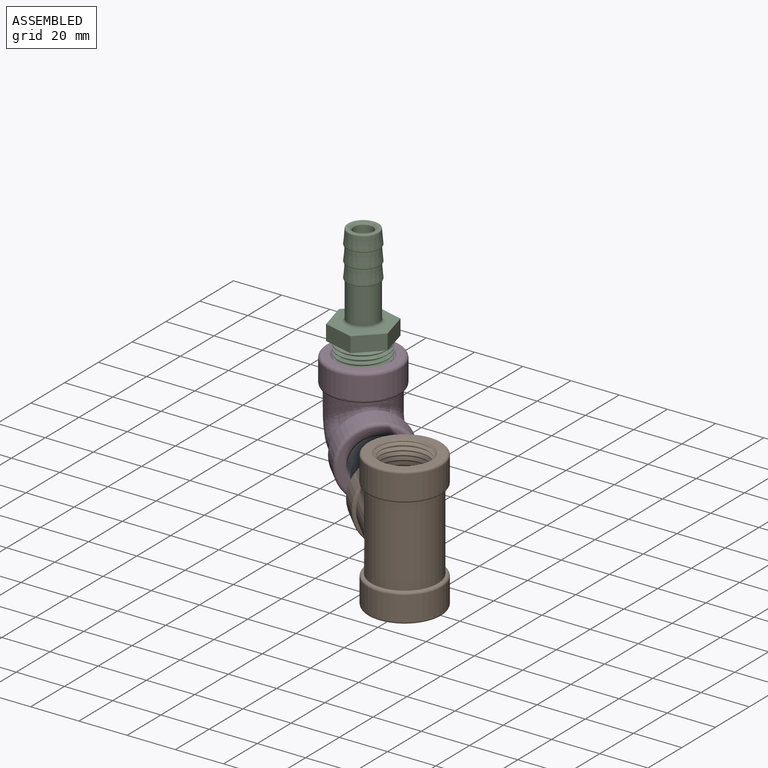
[diagram: assembled view]
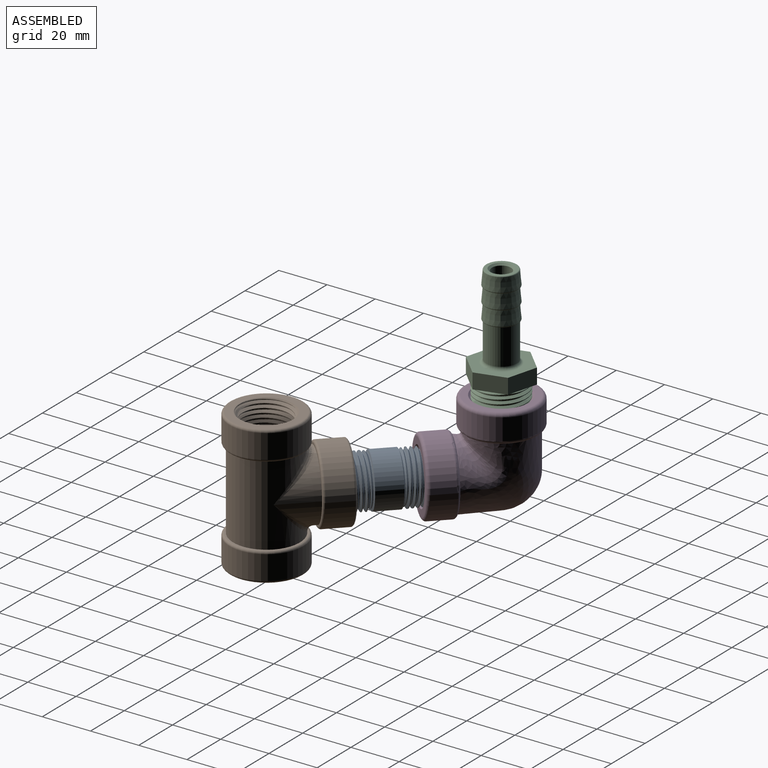
[diagram: assembled view, second angle]
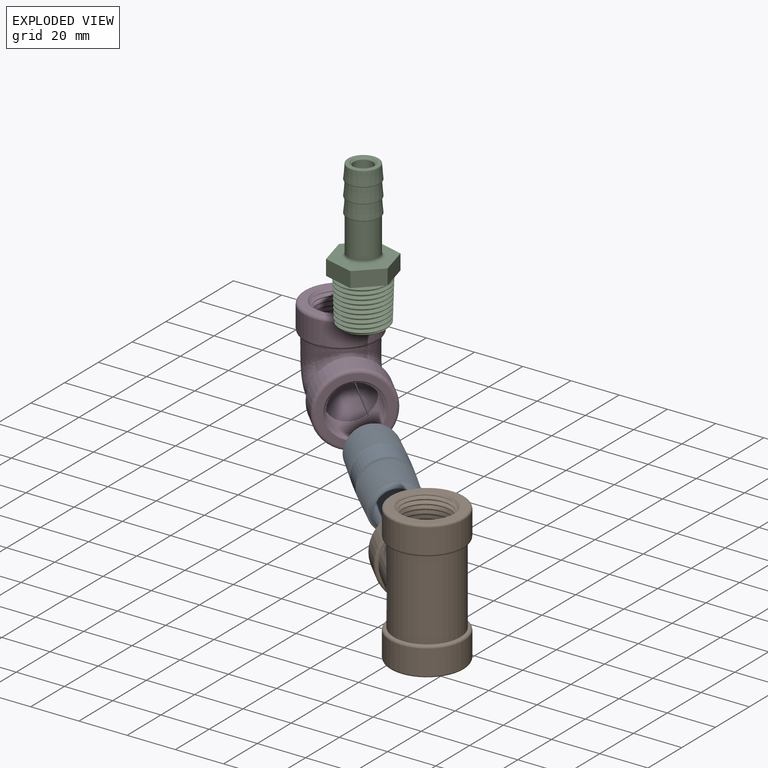
[diagram: exploded view]
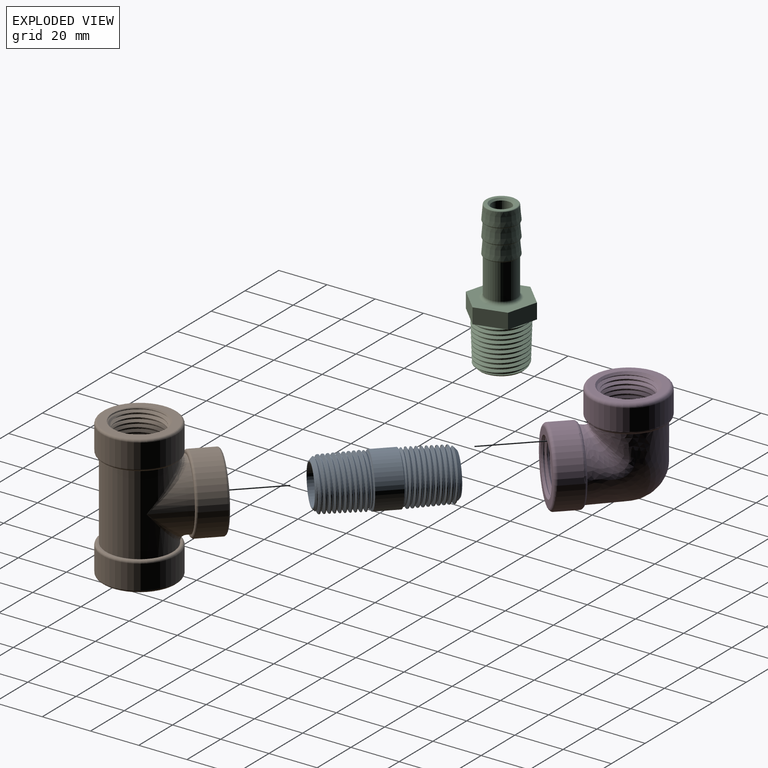
[diagram: exploded view, second angle]
ASSEMBLY  parts=4 mates=3
PART A: 26 faces, bbox 51x21.9x21.9 mm
  f0: cylinder r=7.9mm len=50.8mm, axis (1,0,0), area 2521.4mm2, adj f16,f23
  f1: cone r=10.67mm half-angle=70deg, axis (1,0,0), area 67.3mm2, adj f2,f6
  f2: cone r=9.6mm half-angle=30deg, axis (1,0,0), area 9.5mm2, adj f1,f3,f25
  f3: cone r=9.6mm half-angle=45deg, axis (-1,0,0), area 41.4mm2, adj f2,f5,f19,f20,f21,f22
  f4: cone r=8.28mm half-angle=46.5deg, axis (1,0,0), area 97.8mm2, adj f5,f19,f20,f21,f22,f23,f24
  f5: cone r=10.67mm half-angle=1.5deg, axis (1,0,0), area 196.6mm2, adj f3,f4,f19,f20
  f6: cylinder r=10.67mm len=21.34mm, axis (1,0,0), area 677.6mm2, adj f1,f7
  f7: cone r=10.67mm half-angle=70deg, axis (-1,0,0), area 67.3mm2, adj f6,f8
  f8: cone r=9.6mm half-angle=30deg, axis (-1,0,0), area 9.5mm2, adj f7,f9,f18
  f9: cone r=9.6mm half-angle=45deg, axis (1,0,0), area 41.4mm2, adj f8,f11,f12,f13,f14,f15
  f10: cone r=8.28mm half-angle=46.5deg, axis (-1,0,0), area 97.8mm2, adj f11,f12,f13,f14,f15,f16,f17
  f11: cone r=10.67mm half-angle=1.5deg, axis (-1,0,0), area 196.6mm2, adj f9,f10,f12,f13
  f12: bspline ~21.89x21.81mm, area 81.7mm2, adj f9,f10,f11,f14
  f13: bspline ~21.81x21.79mm, area 46mm2, adj f9,f10,f11,f15
  f14: bspline ~21.1x21mm, area 839.2mm2, adj f9,f10,f12,f17,f18
  f15: bspline ~21.15x20.96mm, area 839.3mm2, adj f9,f10,f13,f17,f18
  f16: plane 16.57x16.57mm, normal (1,0,0), area 19.6mm2, adj f0,f10
  f17: bspline ~19.7x18.66mm, area 139mm2, adj f10,f14,f15,f18
  f18: plane 10.96x4.79mm, normal (1,0,0), area 1.4mm2, adj f8,f14,f15,f17
  f19: bspline ~21.89x21.81mm, area 81.7mm2, adj f3,f4,f5,f21
  f20: bspline ~21.81x21.79mm, area 46mm2, adj f3,f4,f5,f22
  f21: bspline ~21.1x21mm, area 839.2mm2, adj f3,f4,f19,f24,f25
  f22: bspline ~21.15x20.96mm, area 839.3mm2, adj f3,f4,f20,f24,f25
  f23: plane 16.57x16.57mm, normal (-1,0,0), area 19.6mm2, adj f0,f4
  f24: bspline ~19.7x18.66mm, area 139mm2, adj f4,f21,f22,f25
  f25: plane 10.96x4.79mm, normal (-1,0,0), area 1.4mm2, adj f2,f21,f22,f24
PART B: 42 faces, bbox 58.7x33.3x45.7 mm
  f0: torus R=14.37mm, axis (1,0,0), area 148.1mm2, adj f1,f41
  f1: plane 28.73x28.73mm, normal (-1,0,0), area 260.7mm2, adj f0,f2
  f2: cone r=11.11mm half-angle=45deg, axis (-1,0,0), area 67.9mm2, adj f1,f3,f38,f39,f40
  f3: cone r=10.67mm half-angle=1.5deg, axis (-1,0,0), area 111.2mm2, adj f2,f4,f38,f40
  f4: cylinder r=10.67mm len=33.4mm, axis (-1,0,0), area 1691.8mm2, adj f3,f5,f34,f35,f36,f37,f40
  f5: cone r=10.67mm half-angle=1.5deg, axis (1,0,0), area 111.2mm2, adj f4,f6,f33,f35
  f6: cone r=11.11mm half-angle=45deg, axis (1,0,0), area 67.7mm2, adj f5,f7,f8,f33,f35
  f7: bspline ~19.76x19.68mm, area 86.9mm2, adj f6,f33,f34,f35
  f8: plane 28.73x28.73mm, normal (1,0,0), area 260.7mm2, adj f6,f9
  f9: torus R=14.37mm, axis (-1,0,0), area 148.1mm2, adj f8,f10
  f10: cylinder r=15.37mm len=30.73mm, axis (-1,0,0), area 965.7mm2, adj f9,f11
  f11: torus R=14.37mm, axis (-1,0,0), area 148.1mm2, adj f10,f12
  f12: plane 28.73x28.73mm, normal (-1,0,0), area 47.5mm2, adj f11,f13
  f13: cylinder r=13.83mm len=33.4mm, axis (-1,0,0), area 2002.8mm2, adj f12,f14,f29,f30,f31
  f14: bspline ~27.66x16.24mm, area 17.6mm2, adj f13,f15
  f15: cylinder r=13.83mm len=27.66mm, axis (0,0,1), area 553.4mm2, adj f14,f16,f29,f30
  f16: plane 28.73x28.73mm, normal (0,0,-1), area 47.5mm2, adj f15,f17
  f17: torus R=14.37mm, axis (0,0,1), area 148.1mm2, adj f16,f18
  f18: cylinder r=15.37mm len=30.73mm, axis (0,0,-1), area 965.7mm2, adj f17,f19
  f19: torus R=14.37mm, axis (0,0,1), area 148.1mm2, adj f18,f20
  f20: plane 28.73x28.73mm, normal (0,0,1), area 242.8mm2, adj f19,f21
  f21: cone r=11.36mm half-angle=45deg, axis (0,0,1), area 94.3mm2, adj f20,f22,f24,f25,f26,f27,f28
  f22: bspline ~19.33x19.29mm, area 78.6mm2, adj f21,f23,f24,f25,f28
  f23: plane 1.6x1.2mm, normal (0,-1,0), area 1.1mm2, adj f22,f25,f26,f27,f28,f36
  f24: cone r=11.36mm half-angle=45deg, axis (0,0,1), area 1.2mm2, adj f21,f22,f25
  f25: bspline ~22.1x22.06mm, area 507.7mm2, adj f21,f22,f23,f24,f26
  f26: bspline ~21.78x21.76mm, area 10.2mm2, adj f21,f23,f25,f27
  f27: cone r=10.67mm half-angle=1.5deg, axis (0,0,1), area 114.2mm2, adj f21,f23,f26,f28,f36
  f28: bspline ~22.16x22.06mm, area 543.5mm2, adj f21,f22,f23,f27,f36
  f29: bspline ~27.66x16.24mm, area 25.9mm2, adj f13,f15
  f30: bspline ~27.66x16.24mm, area 0mm2, adj f13,f15
  f31: plane 28.73x28.73mm, normal (1,0,0), area 47.5mm2, adj f13,f32
  f32: torus R=14.37mm, axis (1,0,0), area 148.1mm2, adj f31,f41
  f33: bspline ~22.17x22.08mm, area 560.6mm2, adj f5,f6,f7,f34
  f34: plane 1.59x1.18mm, normal (0,1,0), area 1.1mm2, adj f4,f7,f33,f35
  f35: bspline ~22.21x22.06mm, area 584.3mm2, adj f4,f5,f6,f7,f34
  f36: cylinder r=10.67mm len=21.34mm, axis (0,0,-1), area 652.7mm2, adj f4,f23,f27,f28
  f37: plane 1.59x1.18mm, normal (0,1,0), area 1.1mm2, adj f4,f38,f39,f40
  f38: bspline ~22.17x22.08mm, area 560.6mm2, adj f2,f3,f37,f39
  f39: bspline ~19.76x19.68mm, area 86.9mm2, adj f2,f37,f38,f40
  f40: bspline ~22.21x22.06mm, area 584.4mm2, adj f2,f3,f4,f37,f39
  f41: cylinder r=15.37mm len=30.73mm, axis (1,0,0), area 965.7mm2, adj f0,f32
PART C: 32 faces, bbox 23x26.4x61.9 mm
  f0: cone r=7.11mm half-angle=45deg, axis (0,0,-1), area 45.6mm2, adj f1,f16
  f1: cylinder r=6.35mm len=19.72mm, axis (0,0,1), area 786.9mm2, adj f0,f2
  f2: cone r=6.35mm half-angle=45deg, axis (0,0,-1), area 108.9mm2, adj f1,f15
  f3: cone r=4.74mm half-angle=45deg, axis (0,0,1), area 29.5mm2, adj f15,f29
  f4: torus R=7.62mm, axis (0,0,-1), area 85.4mm2, adj f7,f17
  f5: torus R=6.49mm, axis (0,0,-1), area 26.8mm2, adj f8,f31
  f6: torus R=6.49mm, axis (0,0,-1), area 26.8mm2, adj f9,f30
  f7: cylinder r=6.35mm len=14.78mm, axis (0,0,1), area 589.8mm2, adj f4,f31
  f8: cone r=6.91mm half-angle=5deg, axis (0,0,-1), area 247.5mm2, adj f5,f30
  f9: cone r=6.91mm half-angle=5deg, axis (0,0,-1), area 247.5mm2, adj f6,f28
  f10: torus R=6.49mm, axis (0,0,-1), area 26.8mm2, adj f12,f28
  f11: torus R=6mm, axis (0,0,-1), area 22.1mm2, adj f12,f29
  f12: cone r=6.91mm half-angle=5deg, axis (0,0,-1), area 233.5mm2, adj f10,f11
  f13: cone r=8.68mm half-angle=45deg, axis (0,0,1), area 68.1mm2, adj f14,f16,f18,f19,f20
  f14: cone r=10.05mm half-angle=1.8deg, axis (0,0,1), area 163.7mm2, adj f13,f18,f19,f21
  f15: cylinder r=3.98mm len=37.13mm, axis (0,0,-1), area 927.5mm2, adj f2,f3
  f16: plane 17.35x17.35mm, normal (0,0,-1), area 77.5mm2, adj f0,f13
  f17: plane 25.69x22.25mm, normal (0,0,1), area 246.3mm2, adj f4,f22,f23,f24,f25,f26,f27
  f18: bspline ~20.89x20.63mm, area 817.1mm2, adj f13,f14,f20,f21
  f19: bspline ~21.18x20.88mm, area 852mm2, adj f13,f14,f20,f21
  f20: bspline ~19.73x19.06mm, area 137.8mm2, adj f13,f18,f19,f21
  f21: plane 26.39x22.95mm, normal (0,0,-1), area 108.8mm2, adj f14,f18,f19,f20,f22,f23,f24,f25
  f22: plane 11.13x6.42mm, normal (-0.5,0.87,0), area 81.6mm2, adj f17,f21,f23,f27
  f23: plane 11.13x6.42mm, normal (0.5,0.87,0), area 81.6mm2, adj f17,f21,f22,f24
  f24: plane 12.85x6.35mm, normal (1,0,0), area 81.6mm2, adj f17,f21,f23,f25
  f25: plane 11.13x6.42mm, normal (0.5,-0.87,0), area 81.6mm2, adj f17,f21,f24,f26
  f26: plane 11.13x6.42mm, normal (-0.5,-0.87,0), area 81.6mm2, adj f17,f21,f25,f27
  f27: plane 12.85x6.35mm, normal (-1,0,0), area 81.6mm2, adj f17,f21,f22,f26
  f28: plane 12.98x12.98mm, normal (0,0,-1), area 5.6mm2, adj f9,f10
  f29: plane 12x12mm, normal (0,0,1), area 42.6mm2, adj f3,f11
  f30: plane 12.98x12.98mm, normal (0,0,-1), area 5.6mm2, adj f6,f8
  f31: plane 12.98x12.98mm, normal (0,0,-1), area 5.6mm2, adj f5,f7
PART D: 28 faces, bbox 34x46.4x46.2 mm
  f0: bspline ~22.22x22.2mm, area 514.6mm2, adj f2,f6,f8,f22
  f1: bspline ~22.19x22.15mm, area 533.6mm2, adj f2,f6,f7,f8,f22
  f2: bspline ~19.75x19.73mm, area 79.2mm2, adj f0,f1,f7,f8,f22
  f3: plane 27.84x27.84mm, normal (0,1,0), area 7.5mm2, adj f9,f26
  f4: cylinder r=15.37mm len=30.73mm, axis (0,1,0), area 856.4mm2, adj f26,f27
  f5: plane 27.83x27.83mm, normal (0,-1,0), area 221mm2, adj f8,f27
  f6: cone r=10.67mm half-angle=1.5deg, axis (0,-1,0), area 107.2mm2, adj f0,f1,f8,f22
  f7: cone r=11.1mm half-angle=45deg, axis (0,-1,0), area 2.4mm2, adj f1,f2,f8
  f8: cone r=11.1mm half-angle=45deg, axis (0,-1,0), area 65.3mm2, adj f0,f1,f2,f5,f6,f7
  f9: bspline ~30.52x30.52mm, area 2654.2mm2, adj f3,f17
  f10: bspline ~19.68x19.66mm, area 76.7mm2, adj f11,f13,f18,f20,f21
  f11: bspline ~22.17x22.16mm, area 510.8mm2, adj f10,f15,f19,f20,f21
  f12: bspline ~22.14x22.11mm, area 9.9mm2, adj f13,f15,f18,f19
  f13: bspline ~22.09x22.06mm, area 496.6mm2, adj f10,f12,f18,f19,f20
  f14: plane 27.83x27.83mm, normal (0,0,1), area 203.1mm2, adj f19,f25
  f15: cone r=10.67mm half-angle=1.5deg, axis (0,0,1), area 96.4mm2, adj f11,f12,f18,f19,f21
  f16: cylinder r=15.37mm len=30.73mm, axis (0,0,-1), area 856.4mm2, adj f24,f25
  f17: plane 27.84x27.84mm, normal (0,0,-1), area 7.5mm2, adj f9,f24
  f18: plane 1.2x0.81mm, normal (1,0,0), area 0.5mm2, adj f10,f12,f13,f15,f21
  f19: cone r=11.36mm half-angle=45deg, axis (0,0,1), area 87.6mm2, adj f11,f12,f13,f14,f15,f20
  f20: cone r=11.36mm half-angle=45deg, axis (0,0,1), area 7.8mm2, adj f10,f11,f13,f19
  f21: plane 25.28x25.28mm, normal (0,0,-1), area 135.9mm2, adj f10,f11,f15,f18,f23
  f22: plane 25.27x25.27mm, normal (0,1,0), area 154mm2, adj f0,f1,f2,f6,f23
  f23: bspline ~28.97x28.97mm, area 2408.2mm2, adj f21,f22
  f24: torus R=13.92mm, axis (0,0,1), area 212.6mm2, adj f16,f17
  f25: torus R=13.92mm, axis (0,0,1), area 212.6mm2, adj f14,f16
  f26: torus R=13.92mm, axis (0,1,0), area 212.6mm2, adj f3,f4
  f27: torus R=13.92mm, axis (0,1,0), area 212.6mm2, adj f4,f5
PLACE A rot(axis=(0,0,-1),45deg) t=(11.66,24.02,12.41)mm
PLACE B rot(axis=(-0.36,-0.86,-0.36),98.4deg) t=(40.4,-4.71,12.41)mm
PLACE C rot(axis=(0,0,-1),45deg) t=(-16.89,52.58,53.05)mm
PLACE D rot(axis=(0,0,1),45deg) t=(-16.89,52.58,12.41)mm
MATE fastened A.f0 <-> B.f27  axis (0.71,-0.71,0) through (29.62,6.06,12.41)mm
MATE fastened C.f0 <-> D.f15  axis (0,0,-1) through (-16.89,52.58,27.4)mm
MATE fastened D.f6 <-> A.f0  axis (0.71,-0.71,0) through (3.22,32.46,12.41)mm
